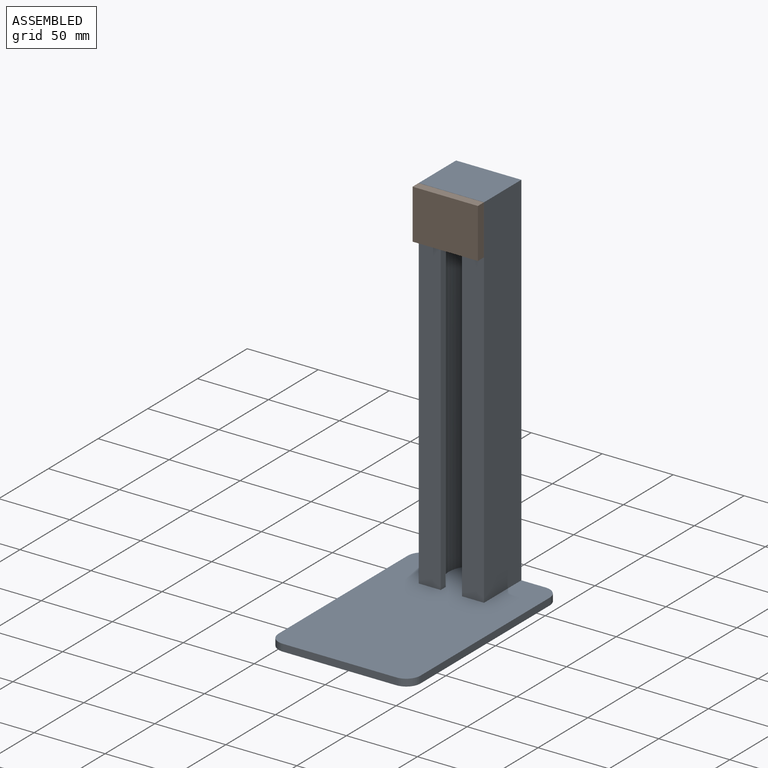
[diagram: assembled view]
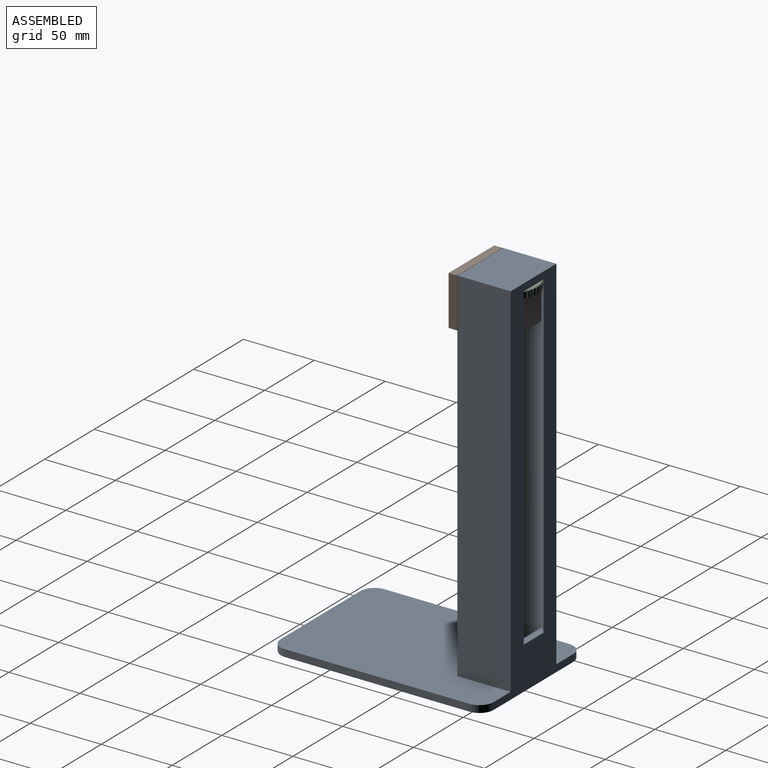
[diagram: assembled view, second angle]
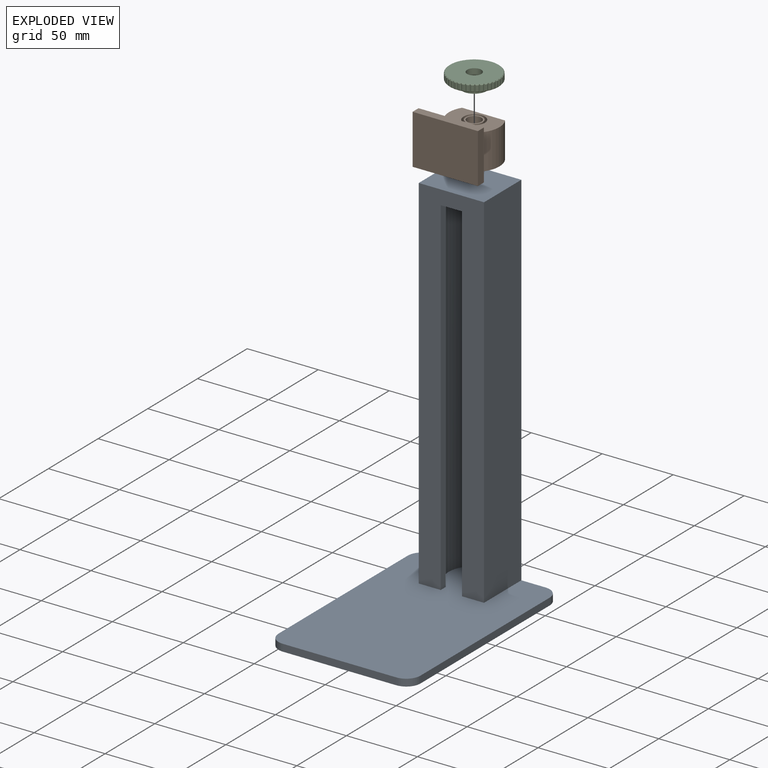
[diagram: exploded view]
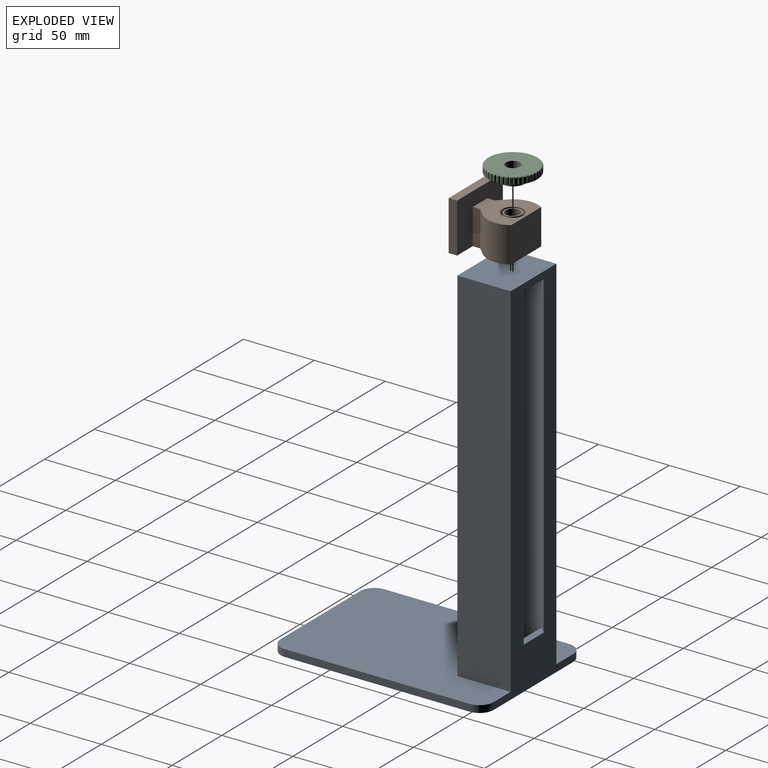
[diagram: exploded view, second angle]
ASSEMBLY  parts=3 mates=3
PART A: 28 faces, bbox 100x150x260 mm
  f0: plane 245x5mm, normal (-1,0,0), area 1225mm2, adj f5,f8,f16,f27
  f1: plane 245x5mm, normal (1,0,0), area 1225mm2, adj f8,f9,f16,f27
  f2: plane 36x33.96mm, normal (0,0,-1), area 911.8mm2, adj f3,f4,f5,f9,f10,f11,f21,f22
  f3: plane 260x80mm, normal (0,1,0), area 7641.5mm2, adj f2,f6,f7,f15,f16,f17,f20,f21
  f4: plane 250x30.58mm, normal (0,-1,0), area 977.4mm2, adj f2,f10,f11,f16,f21,f22,f23
  f5: plane 250x5.33mm, normal (-0.71,0.7,0), area 1875mm2, adj f0,f2,f11,f16,f26
  f6: plane 255x37.5mm, normal (1,0,0), area 9562.5mm2, adj f3,f8,f16,f24
  f7: plane 255x37.5mm, normal (-1,0,0), area 9562.5mm2, adj f3,f8,f16,f24
  f8: plane 255x46mm, normal (0,-1,0), area 8055mm2, adj f0,f1,f6,f7,f16,f24,f27
  f9: plane 250x5.33mm, normal (0.71,0.7,0), area 1875mm2, adj f1,f2,f10,f16,f26
  f10: cylinder r=18mm len=250mm, axis (0,0,-1), area 6017.4mm2, adj f2,f4,f9,f16
  f11: cylinder r=18mm len=250mm, axis (0,0,-1), area 6017.4mm2, adj f2,f4,f5,f16
  f12: plane 130x5mm, normal (-1,0,0), area 650mm2, adj f15,f16,f19,f20
  f13: plane 130x5mm, normal (1,0,0), area 650mm2, adj f15,f16,f17,f18
  f14: plane 80x5mm, normal (0,-1,0), area 400mm2, adj f15,f16,f18,f19
  f15: plane 150x100mm, normal (0,0,-1), area 14914.2mm2, adj f3,f12,f13,f14,f17,f18,f19,f20
  f16: plane 150x100mm, normal (0,0,1), area 14034.1mm2, adj f0,f1,f3,f4,f5,f6,f7,f8
  f17: cylinder r=10mm len=10mm, axis (0,0,-1), area 78.5mm2, adj f3,f13,f15,f16
  f18: cylinder r=10mm len=10mm, axis (0,0,1), area 78.5mm2, adj f13,f14,f15,f16
  f19: cylinder r=10mm len=10mm, axis (0,0,-1), area 78.5mm2, adj f12,f14,f15,f16
  f20: cylinder r=10mm len=10mm, axis (0,0,1), area 78.5mm2, adj f3,f12,f15,f16
  f21: cylinder r=17.7mm len=225mm, axis (0,0,1), area 1567mm2, adj f2,f3,f4,f23
  f22: cylinder r=17.5mm len=225mm, axis (0,0,1), area 1585.7mm2, adj f2,f3,f4,f23
  f23: plane 29.63x5mm, normal (0,0,1), area 127.2mm2, adj f3,f4,f21,f22
  f24: plane 46x37.5mm, normal (0,0,1), area 1725mm2, adj f3,f6,f7,f8
  f25: cylinder r=5mm len=250mm, axis (0,0,-1), area 7854mm2, adj f2,f16
  f26: cylinder r=20mm len=15mm, axis (0,0,1), area 76.9mm2, adj f2,f5,f9,f27
  f27: plane 15x5mm, normal (0,0,-1), area 60.3mm2, adj f0,f1,f8,f26
PART B: 21 faces, bbox 46x38.5x35 mm
  f0: plane 35.6x32.5mm, normal (0,0,1), area 729mm2, adj f2,f6,f7,f8,f9,f10,f11,f13
  f1: plane 12x12mm, normal (0,0,1), area 34.6mm2, adj f12,f19
  f2: plane 25x5.28mm, normal (-1,0,0), area 132.1mm2, adj f0,f6,f13,f14
  f3: plane 35x6mm, normal (-1,0,0), area 210mm2, adj f4,f6,f14,f20
  f4: plane 46x35mm, normal (0,-1,0), area 1610mm2, adj f3,f5,f14,f20
  f5: plane 35x6mm, normal (1,0,0), area 210mm2, adj f4,f6,f14,f20
  f6: plane 46x35mm, normal (0,1,0), area 1245mm2, adj f0,f2,f3,f5,f7,f14,f20
  f7: plane 25x5.28mm, normal (1,0,0), area 132.1mm2, adj f0,f6,f8,f14
  f8: plane 25x5.38mm, normal (0.71,-0.7,0), area 189.6mm2, adj f0,f7,f9,f14
  f9: cylinder r=17.8mm len=25mm, axis (0,0,-1), area 592.3mm2, adj f0,f8,f10,f14
  f10: plane 30.35x25mm, normal (0,1,0), area 758.9mm2, adj f0,f9,f11,f14
  f11: cylinder r=17.8mm len=25mm, axis (0,0,-1), area 592.3mm2, adj f0,f10,f13,f14
  f12: cylinder r=5mm len=25mm, axis (0,0,-1), area 785.4mm2, adj f1,f14
  f13: plane 25x5.38mm, normal (-0.71,-0.7,0), area 189.6mm2, adj f0,f2,f11,f14
  f14: plane 46x38.5mm, normal (0,0,-1), area 1103.2mm2, adj f2,f3,f4,f5,f6,f7,f8,f9
  f15: cylinder r=7.5mm len=15mm, axis (0,0,1), area 164.9mm2, adj f0,f16
  f16: plane 17x17mm, normal (0,0,-1), area 50.3mm2, adj f15,f17
  f17: cylinder r=8.5mm len=17mm, axis (0,0,1), area 80.1mm2, adj f16,f18
  f18: plane 17x17mm, normal (0,0,1), area 113.9mm2, adj f17,f19
  f19: cylinder r=6mm len=12mm, axis (0,0,1), area 188.5mm2, adj f1,f18
  f20: plane 46x6mm, normal (0,0,1), area 276mm2, adj f3,f4,f5,f6
PART C: 209 faces, bbox 35x35x10 mm
  f0: cylinder r=17.5mm len=4mm, axis (0,0,1), area 6mm2, adj f40,f80,f205,f208
  f1: cylinder r=17.5mm len=4mm, axis (0,0,1), area 6mm2, adj f41,f81,f203,f206
  f2: cylinder r=17.5mm len=4mm, axis (0,0,1), area 6mm2, adj f42,f82,f201,f204
  f3: cylinder r=17.5mm len=4mm, axis (0,0,1), area 6mm2, adj f43,f83,f199,f202
  f4: cylinder r=17.5mm len=4mm, axis (0,0,1), area 6mm2, adj f44,f84,f197,f200
  f5: cylinder r=17.5mm len=4mm, axis (0,0,1), area 6mm2, adj f45,f85,f195,f198
  f6: cylinder r=17.5mm len=4mm, axis (0,0,1), area 6mm2, adj f46,f86,f193,f196
  f7: cylinder r=17.5mm len=4mm, axis (0,0,1), area 6mm2, adj f47,f87,f191,f194
  f8: cylinder r=17.5mm len=4mm, axis (0,0,1), area 6mm2, adj f48,f88,f189,f192
  f9: cylinder r=17.5mm len=4mm, axis (0,0,1), area 6mm2, adj f49,f89,f187,f190
  f10: cylinder r=17.5mm len=4mm, axis (0,0,1), area 6mm2, adj f50,f90,f185,f188
  f11: cylinder r=17.5mm len=4mm, axis (0,0,1), area 6mm2, adj f51,f91,f183,f186
  f12: cylinder r=17.5mm len=4mm, axis (0,0,1), area 6mm2, adj f52,f92,f181,f184
  f13: cylinder r=17.5mm len=4mm, axis (0,0,1), area 6mm2, adj f53,f93,f179,f182
  f14: cylinder r=17.5mm len=4mm, axis (0,0,1), area 6mm2, adj f54,f94,f177,f180
  f15: cylinder r=17.5mm len=4mm, axis (0,0,1), area 6mm2, adj f55,f95,f175,f178
  f16: cylinder r=17.5mm len=4mm, axis (0,0,1), area 6mm2, adj f56,f96,f173,f176
  f17: cylinder r=17.5mm len=4mm, axis (0,0,1), area 6mm2, adj f57,f97,f171,f174
  f18: cylinder r=17.5mm len=4mm, axis (0,0,1), area 6mm2, adj f58,f98,f169,f172
  f19: cylinder r=17.5mm len=4mm, axis (0,0,1), area 6mm2, adj f59,f99,f167,f170
  f20: cylinder r=17.5mm len=4mm, axis (0,0,1), area 6mm2, adj f60,f100,f165,f168
  f21: cylinder r=17.5mm len=4mm, axis (0,0,1), area 6mm2, adj f61,f101,f163,f166
  f22: cylinder r=17.5mm len=4mm, axis (0,0,1), area 6mm2, adj f62,f102,f161,f164
  f23: cylinder r=17.5mm len=4mm, axis (0,0,1), area 6mm2, adj f63,f103,f159,f162
  f24: cylinder r=17.5mm len=4mm, axis (0,0,1), area 6mm2, adj f64,f104,f157,f160
  f25: cylinder r=17.5mm len=4mm, axis (0,0,1), area 6mm2, adj f65,f105,f155,f158
  f26: cylinder r=17.5mm len=4mm, axis (0,0,1), area 6mm2, adj f66,f106,f153,f156
  f27: cylinder r=17.5mm len=4mm, axis (0,0,1), area 6mm2, adj f67,f107,f151,f154
  f28: cylinder r=17.5mm len=4mm, axis (0,0,1), area 6mm2, adj f68,f108,f149,f152
  f29: cylinder r=17.5mm len=4mm, axis (0,0,1), area 6mm2, adj f69,f109,f147,f150
  f30: cylinder r=17.5mm len=4mm, axis (0,0,1), area 6mm2, adj f70,f110,f145,f148
  f31: cylinder r=17.5mm len=4mm, axis (0,0,1), area 6mm2, adj f78,f118,f129,f146
  f32: cylinder r=17.5mm len=4mm, axis (0,0,1), area 6mm2, adj f39,f79,f144,f207
  f33: cylinder r=17.5mm len=4mm, axis (0,0,1), area 6mm2, adj f71,f111,f142,f143
  f34: cylinder r=17.5mm len=4mm, axis (0,0,1), area 6mm2, adj f72,f112,f140,f141
  f35: cylinder r=17.5mm len=4mm, axis (0,0,1), area 6mm2, adj f73,f113,f138,f139
  f36: cylinder r=17.5mm len=4mm, axis (0,0,1), area 6mm2, adj f74,f114,f136,f137
  f37: cylinder r=17.5mm len=4mm, axis (0,0,1), area 6mm2, adj f75,f115,f134,f135
  f38: cylinder r=17.5mm len=4mm, axis (0,0,1), area 6mm2, adj f76,f116,f132,f133
  f39: cone r=17.5mm half-angle=45deg, axis (0,0,1), area 1.5mm2, adj f32,f121,f144,f207
  f40: cone r=17.5mm half-angle=45deg, axis (0,0,1), area 1.5mm2, adj f0,f121,f205,f208
  f41: cone r=17.5mm half-angle=45deg, axis (0,0,1), area 1.5mm2, adj f1,f121,f203,f206
  f42: cone r=17.5mm half-angle=45deg, axis (0,0,1), area 1.5mm2, adj f2,f121,f201,f204
  f43: cone r=17.5mm half-angle=45deg, axis (0,0,1), area 1.5mm2, adj f3,f121,f199,f202
  f44: cone r=17.5mm half-angle=45deg, axis (0,0,1), area 1.5mm2, adj f4,f121,f197,f200
  f45: cone r=17.5mm half-angle=45deg, axis (0,0,1), area 1.5mm2, adj f5,f121,f195,f198
  f46: cone r=17.5mm half-angle=45deg, axis (0,0,1), area 1.5mm2, adj f6,f121,f193,f196
  f47: cone r=17.5mm half-angle=45deg, axis (0,0,1), area 1.5mm2, adj f7,f121,f191,f194
  f48: cone r=17.5mm half-angle=45deg, axis (0,0,1), area 1.5mm2, adj f8,f121,f189,f192
  f49: cone r=17.5mm half-angle=45deg, axis (0,0,1), area 1.5mm2, adj f9,f121,f187,f190
  f50: cone r=17.5mm half-angle=45deg, axis (0,0,1), area 1.5mm2, adj f10,f121,f185,f188
  f51: cone r=17.5mm half-angle=45deg, axis (0,0,1), area 1.5mm2, adj f11,f121,f183,f186
  f52: cone r=17.5mm half-angle=45deg, axis (0,0,1), area 1.5mm2, adj f12,f121,f181,f184
  f53: cone r=17.5mm half-angle=45deg, axis (0,0,1), area 1.5mm2, adj f13,f121,f179,f182
  f54: cone r=17.5mm half-angle=45deg, axis (0,0,1), area 1.5mm2, adj f14,f121,f177,f180
  f55: cone r=17.5mm half-angle=45deg, axis (0,0,1), area 1.5mm2, adj f15,f121,f175,f178
  f56: cone r=17.5mm half-angle=45deg, axis (0,0,1), area 1.5mm2, adj f16,f121,f173,f176
  f57: cone r=17.5mm half-angle=45deg, axis (0,0,1), area 1.5mm2, adj f17,f121,f171,f174
  f58: cone r=17.5mm half-angle=45deg, axis (0,0,1), area 1.5mm2, adj f18,f121,f169,f172
  f59: cone r=17.5mm half-angle=45deg, axis (0,0,1), area 1.5mm2, adj f19,f121,f167,f170
  f60: cone r=17.5mm half-angle=45deg, axis (0,0,1), area 1.5mm2, adj f20,f121,f165,f168
  f61: cone r=17.5mm half-angle=45deg, axis (0,0,1), area 1.5mm2, adj f21,f121,f163,f166
  f62: cone r=17.5mm half-angle=45deg, axis (0,0,1), area 1.5mm2, adj f22,f121,f161,f164
  f63: cone r=17.5mm half-angle=45deg, axis (0,0,1), area 1.5mm2, adj f23,f121,f159,f162
  f64: cone r=17.5mm half-angle=45deg, axis (0,0,1), area 1.5mm2, adj f24,f121,f157,f160
  f65: cone r=17.5mm half-angle=45deg, axis (0,0,1), area 1.5mm2, adj f25,f121,f155,f158
  f66: cone r=17.5mm half-angle=45deg, axis (0,0,1), area 1.5mm2, adj f26,f121,f153,f156
  f67: cone r=17.5mm half-angle=45deg, axis (0,0,1), area 1.5mm2, adj f27,f121,f151,f154
  f68: cone r=17.5mm half-angle=45deg, axis (0,0,1), area 1.5mm2, adj f28,f121,f149,f152
  f69: cone r=17.5mm half-angle=45deg, axis (0,0,1), area 1.5mm2, adj f29,f121,f147,f150
  f70: cone r=17.5mm half-angle=45deg, axis (0,0,1), area 1.5mm2, adj f30,f121,f145,f148
  f71: cone r=17.5mm half-angle=45deg, axis (0,0,1), area 1.5mm2, adj f33,f121,f142,f143
  f72: cone r=17.5mm half-angle=45deg, axis (0,0,1), area 1.5mm2, adj f34,f121,f140,f141
  f73: cone r=17.5mm half-angle=45deg, axis (0,0,1), area 1.5mm2, adj f35,f121,f138,f139
  f74: cone r=17.5mm half-angle=45deg, axis (0,0,1), area 1.5mm2, adj f36,f121,f136,f137
  f75: cone r=17.5mm half-angle=45deg, axis (0,0,1), area 1.5mm2, adj f37,f121,f134,f135
  f76: cone r=17.5mm half-angle=45deg, axis (0,0,1), area 1.5mm2, adj f38,f121,f132,f133
  f77: cone r=17.5mm half-angle=45deg, axis (0,0,1), area 1.5mm2, adj f120,f121,f130,f131
  f78: cone r=17.5mm half-angle=45deg, axis (0,0,1), area 1.5mm2, adj f31,f121,f129,f146
  f79: cone r=17mm half-angle=45deg, axis (0,0,-1), area 1.5mm2, adj f32,f119,f144,f207
  f80: cone r=17mm half-angle=45deg, axis (0,0,-1), area 1.5mm2, adj f0,f119,f205,f208
  f81: cone r=17mm half-angle=45deg, axis (0,0,-1), area 1.5mm2, adj f1,f119,f203,f206
  f82: cone r=17mm half-angle=45deg, axis (0,0,-1), area 1.5mm2, adj f2,f119,f201,f204
  f83: cone r=17mm half-angle=45deg, axis (0,0,-1), area 1.5mm2, adj f3,f119,f199,f202
  f84: cone r=17mm half-angle=45deg, axis (0,0,-1), area 1.5mm2, adj f4,f119,f197,f200
  f85: cone r=17mm half-angle=45deg, axis (0,0,-1), area 1.5mm2, adj f5,f119,f195,f198
  f86: cone r=17mm half-angle=45deg, axis (0,0,-1), area 1.5mm2, adj f6,f119,f193,f196
  f87: cone r=17mm half-angle=45deg, axis (0,0,-1), area 1.5mm2, adj f7,f119,f191,f194
  f88: cone r=17mm half-angle=45deg, axis (0,0,-1), area 1.5mm2, adj f8,f119,f189,f192
  f89: cone r=17mm half-angle=45deg, axis (0,0,-1), area 1.5mm2, adj f9,f119,f187,f190
  f90: cone r=17mm half-angle=45deg, axis (0,0,-1), area 1.5mm2, adj f10,f119,f185,f188
  f91: cone r=17mm half-angle=45deg, axis (0,0,-1), area 1.5mm2, adj f11,f119,f183,f186
  f92: cone r=17mm half-angle=45deg, axis (0,0,-1), area 1.5mm2, adj f12,f119,f181,f184
  f93: cone r=17mm half-angle=45deg, axis (0,0,-1), area 1.5mm2, adj f13,f119,f179,f182
  f94: cone r=17mm half-angle=45deg, axis (0,0,-1), area 1.5mm2, adj f14,f119,f177,f180
  f95: cone r=17mm half-angle=45deg, axis (0,0,-1), area 1.5mm2, adj f15,f119,f175,f178
  f96: cone r=17mm half-angle=45deg, axis (0,0,-1), area 1.5mm2, adj f16,f119,f173,f176
  f97: cone r=17mm half-angle=45deg, axis (0,0,-1), area 1.5mm2, adj f17,f119,f171,f174
  f98: cone r=17mm half-angle=45deg, axis (0,0,-1), area 1.5mm2, adj f18,f119,f169,f172
  f99: cone r=17mm half-angle=45deg, axis (0,0,-1), area 1.5mm2, adj f19,f119,f167,f170
  f100: cone r=17mm half-angle=45deg, axis (0,0,-1), area 1.5mm2, adj f20,f119,f165,f168
  f101: cone r=17mm half-angle=45deg, axis (0,0,-1), area 1.5mm2, adj f21,f119,f163,f166
  f102: cone r=17mm half-angle=45deg, axis (0,0,-1), area 1.5mm2, adj f22,f119,f161,f164
  f103: cone r=17mm half-angle=45deg, axis (0,0,-1), area 1.5mm2, adj f23,f119,f159,f162
  f104: cone r=17mm half-angle=45deg, axis (0,0,-1), area 1.5mm2, adj f24,f119,f157,f160
  f105: cone r=17mm half-angle=45deg, axis (0,0,-1), area 1.5mm2, adj f25,f119,f155,f158
  f106: cone r=17mm half-angle=45deg, axis (0,0,-1), area 1.5mm2, adj f26,f119,f153,f156
  f107: cone r=17mm half-angle=45deg, axis (0,0,-1), area 1.5mm2, adj f27,f119,f151,f154
  f108: cone r=17mm half-angle=45deg, axis (0,0,-1), area 1.5mm2, adj f28,f119,f149,f152
  f109: cone r=17mm half-angle=45deg, axis (0,0,-1), area 1.5mm2, adj f29,f119,f147,f150
  f110: cone r=17mm half-angle=45deg, axis (0,0,-1), area 1.5mm2, adj f30,f119,f145,f148
  f111: cone r=17mm half-angle=45deg, axis (0,0,-1), area 1.5mm2, adj f33,f119,f142,f143
  f112: cone r=17mm half-angle=45deg, axis (0,0,-1), area 1.5mm2, adj f34,f119,f140,f141
  f113: cone r=17mm half-angle=45deg, axis (0,0,-1), area 1.5mm2, adj f35,f119,f138,f139
  f114: cone r=17mm half-angle=45deg, axis (0,0,-1), area 1.5mm2, adj f36,f119,f136,f137
  f115: cone r=17mm half-angle=45deg, axis (0,0,-1), area 1.5mm2, adj f37,f119,f134,f135
  f116: cone r=17mm half-angle=45deg, axis (0,0,-1), area 1.5mm2, adj f38,f119,f132,f133
  f117: cone r=17mm half-angle=45deg, axis (0,0,-1), area 1.5mm2, adj f119,f120,f130,f131
  f118: cone r=17mm half-angle=45deg, axis (0,0,-1), area 1.5mm2, adj f31,f119,f129,f146
  f119: plane 34x34mm, normal (0,0,1), area 829.4mm2, adj f79,f80,f81,f82,f83,f84,f85,f86
  f120: cylinder r=17.5mm len=4mm, axis (0,0,1), area 6mm2, adj f77,f117,f130,f131
  f121: plane 34x34mm, normal (0,0,-1), area 731.2mm2, adj f39,f40,f41,f42,f43,f44,f45,f46
  f122: cylinder r=7.5mm len=15mm, axis (0,0,1), area 164.9mm2, adj f121,f123
  f123: plane 17x17mm, normal (0,0,1), area 50.3mm2, adj f122,f124
  f124: cylinder r=8.5mm len=17mm, axis (0,0,1), area 80.1mm2, adj f123,f125
  f125: plane 17x17mm, normal (0,0,-1), area 113.9mm2, adj f124,f126
  f126: cylinder r=6mm len=12mm, axis (0,0,1), area 188.5mm2, adj f125,f127
  f127: plane 12x12mm, normal (0,0,-1), area 34.6mm2, adj f126,f128
  f128: cylinder r=5mm len=10mm, axis (0,0,1), area 157.1mm2, adj f119,f127
  f129: plane 5.01x0.64mm, normal (0.62,0.79,0), area 3.6mm2, adj f31,f78,f118,f130
  f130: plane 5.01x0.64mm, normal (-0.62,0.79,0), area 3.6mm2, adj f77,f117,f120,f129
  f131: plane 5.01x0.59mm, normal (0.73,0.68,0), area 3.6mm2, adj f77,f117,f120,f132
  f132: plane 5.01x0.71mm, normal (-0.49,0.87,0), area 3.6mm2, adj f38,f76,f116,f131
  f133: plane 5.01x0.67mm, normal (0.83,0.56,0), area 3.6mm2, adj f38,f76,f116,f134
  f134: plane 5.01x0.76mm, normal (-0.34,0.94,0), area 3.6mm2, adj f37,f75,f115,f133
  f135: plane 5.01x0.73mm, normal (0.91,0.42,0), area 3.6mm2, adj f37,f75,f115,f136
  f136: plane 5.01x0.79mm, normal (-0.19,0.98,0), area 3.6mm2, adj f36,f74,f114,f135
  f137: plane 5.01x0.77mm, normal (0.96,0.27,0), area 3.6mm2, adj f36,f74,f114,f138
  f138: plane 5.01x0.8mm, normal (-0.04,1,0), area 3.6mm2, adj f35,f73,f113,f137
  f139: plane 5.01x0.8mm, normal (0.99,0.12,0), area 3.6mm2, adj f35,f73,f113,f140
  f140: plane 5.01x0.8mm, normal (0.12,0.99,0), area 3.6mm2, adj f34,f72,f112,f139
  f141: plane 5.01x0.8mm, normal (1,-0.04,0), area 3.6mm2, adj f34,f72,f112,f142
  f142: plane 5.01x0.77mm, normal (0.27,0.96,0), area 3.6mm2, adj f33,f71,f111,f141
  f143: plane 5.01x0.79mm, normal (0.98,-0.19,0), area 3.6mm2, adj f33,f71,f111,f144
  f144: plane 5.01x0.73mm, normal (0.42,0.91,0), area 3.6mm2, adj f32,f39,f79,f143
  f145: plane 5.01x0.71mm, normal (0.49,0.87,0), area 3.6mm2, adj f30,f70,f110,f146
  f146: plane 5.01x0.59mm, normal (-0.73,0.68,0), area 3.6mm2, adj f31,f78,f118,f145
  f147: plane 5.01x0.76mm, normal (0.34,0.94,0), area 3.6mm2, adj f29,f69,f109,f148
  f148: plane 5.01x0.67mm, normal (-0.83,0.56,0), area 3.6mm2, adj f30,f70,f110,f147
  f149: plane 5.01x0.79mm, normal (0.19,0.98,0), area 3.6mm2, adj f28,f68,f108,f150
  f150: plane 5.01x0.73mm, normal (-0.91,0.42,0), area 3.6mm2, adj f29,f69,f109,f149
  f151: plane 5.01x0.8mm, normal (0.04,1,0), area 3.6mm2, adj f27,f67,f107,f152
  f152: plane 5.01x0.77mm, normal (-0.96,0.27,0), area 3.6mm2, adj f28,f68,f108,f151
  f153: plane 5.01x0.8mm, normal (-0.12,0.99,0), area 3.6mm2, adj f26,f66,f106,f154
  f154: plane 5.01x0.8mm, normal (-0.99,0.12,0), area 3.6mm2, adj f27,f67,f107,f153
  f155: plane 5.01x0.77mm, normal (-0.27,0.96,0), area 3.6mm2, adj f25,f65,f105,f156
  f156: plane 5.01x0.8mm, normal (-1,-0.04,0), area 3.6mm2, adj f26,f66,f106,f155
  f157: plane 5.01x0.73mm, normal (-0.42,0.91,0), area 3.6mm2, adj f24,f64,f104,f158
  f158: plane 5.01x0.79mm, normal (-0.98,-0.19,0), area 3.6mm2, adj f25,f65,f105,f157
  f159: plane 5.01x0.67mm, normal (-0.56,0.83,0), area 3.6mm2, adj f23,f63,f103,f160
  f160: plane 5.01x0.76mm, normal (-0.94,-0.34,0), area 3.6mm2, adj f24,f64,f104,f159
  f161: plane 5.01x0.59mm, normal (-0.68,0.73,0), area 3.6mm2, adj f22,f62,f102,f162
  f162: plane 5.01x0.71mm, normal (-0.87,-0.49,0), area 3.6mm2, adj f23,f63,f103,f161
  f163: plane 5.01x0.64mm, normal (-0.79,0.62,0), area 3.6mm2, adj f21,f61,f101,f164
  f164: plane 5.01x0.64mm, normal (-0.79,-0.62,0), area 3.6mm2, adj f22,f62,f102,f163
  f165: plane 5.01x0.71mm, normal (-0.87,0.49,0), area 3.6mm2, adj f20,f60,f100,f166
  f166: plane 5.01x0.59mm, normal (-0.68,-0.73,0), area 3.6mm2, adj f21,f61,f101,f165
  f167: plane 5.01x0.76mm, normal (-0.94,0.34,0), area 3.6mm2, adj f19,f59,f99,f168
  f168: plane 5.01x0.67mm, normal (-0.56,-0.83,0), area 3.6mm2, adj f20,f60,f100,f167
  f169: plane 5.01x0.79mm, normal (-0.98,0.19,0), area 3.6mm2, adj f18,f58,f98,f170
  f170: plane 5.01x0.73mm, normal (-0.42,-0.91,0), area 3.6mm2, adj f19,f59,f99,f169
  f171: plane 5.01x0.8mm, normal (-1,0.04,0), area 3.6mm2, adj f17,f57,f97,f172
  f172: plane 5.01x0.77mm, normal (-0.27,-0.96,0), area 3.6mm2, adj f18,f58,f98,f171
  f173: plane 5.01x0.8mm, normal (-0.99,-0.12,0), area 3.6mm2, adj f16,f56,f96,f174
  f174: plane 5.01x0.8mm, normal (-0.12,-0.99,0), area 3.6mm2, adj f17,f57,f97,f173
  f175: plane 5.01x0.77mm, normal (-0.96,-0.27,0), area 3.6mm2, adj f15,f55,f95,f176
  f176: plane 5.01x0.8mm, normal (0.04,-1,0), area 3.6mm2, adj f16,f56,f96,f175
  f177: plane 5.01x0.73mm, normal (-0.91,-0.42,0), area 3.6mm2, adj f14,f54,f94,f178
  f178: plane 5.01x0.79mm, normal (0.19,-0.98,0), area 3.6mm2, adj f15,f55,f95,f177
  f179: plane 5.01x0.67mm, normal (-0.83,-0.56,0), area 3.6mm2, adj f13,f53,f93,f180
  f180: plane 5.01x0.76mm, normal (0.34,-0.94,0), area 3.6mm2, adj f14,f54,f94,f179
  f181: plane 5.01x0.59mm, normal (-0.73,-0.68,0), area 3.6mm2, adj f12,f52,f92,f182
  f182: plane 5.01x0.71mm, normal (0.49,-0.87,0), area 3.6mm2, adj f13,f53,f93,f181
  f183: plane 5.01x0.64mm, normal (-0.62,-0.79,0), area 3.6mm2, adj f11,f51,f91,f184
  f184: plane 5.01x0.64mm, normal (0.62,-0.79,0), area 3.6mm2, adj f12,f52,f92,f183
  f185: plane 5.01x0.71mm, normal (-0.49,-0.87,0), area 3.6mm2, adj f10,f50,f90,f186
  f186: plane 5.01x0.59mm, normal (0.73,-0.68,0), area 3.6mm2, adj f11,f51,f91,f185
  f187: plane 5.01x0.76mm, normal (-0.34,-0.94,0), area 3.6mm2, adj f9,f49,f89,f188
  f188: plane 5.01x0.67mm, normal (0.83,-0.56,0), area 3.6mm2, adj f10,f50,f90,f187
  f189: plane 5.01x0.79mm, normal (-0.19,-0.98,0), area 3.6mm2, adj f8,f48,f88,f190
  f190: plane 5.01x0.73mm, normal (0.91,-0.42,0), area 3.6mm2, adj f9,f49,f89,f189
  f191: plane 5.01x0.8mm, normal (-0.04,-1,0), area 3.6mm2, adj f7,f47,f87,f192
  f192: plane 5.01x0.77mm, normal (0.96,-0.27,0), area 3.6mm2, adj f8,f48,f88,f191
  f193: plane 5.01x0.8mm, normal (0.12,-0.99,0), area 3.6mm2, adj f6,f46,f86,f194
  f194: plane 5.01x0.8mm, normal (0.99,-0.12,0), area 3.6mm2, adj f7,f47,f87,f193
  f195: plane 5.01x0.77mm, normal (0.27,-0.96,0), area 3.6mm2, adj f5,f45,f85,f196
  f196: plane 5.01x0.8mm, normal (1,0.04,0), area 3.6mm2, adj f6,f46,f86,f195
  f197: plane 5.01x0.73mm, normal (0.42,-0.91,0), area 3.6mm2, adj f4,f44,f84,f198
  f198: plane 5.01x0.79mm, normal (0.98,0.19,0), area 3.6mm2, adj f5,f45,f85,f197
  f199: plane 5.01x0.67mm, normal (0.56,-0.83,0), area 3.6mm2, adj f3,f43,f83,f200
  f200: plane 5.01x0.76mm, normal (0.94,0.34,0), area 3.6mm2, adj f4,f44,f84,f199
  f201: plane 5.01x0.59mm, normal (0.68,-0.73,0), area 3.6mm2, adj f2,f42,f82,f202
  f202: plane 5.01x0.71mm, normal (0.87,0.49,0), area 3.6mm2, adj f3,f43,f83,f201
  f203: plane 5.01x0.64mm, normal (0.79,-0.62,0), area 3.6mm2, adj f1,f41,f81,f204
  f204: plane 5.01x0.64mm, normal (0.79,0.62,0), area 3.6mm2, adj f2,f42,f82,f203
  f205: plane 5.01x0.71mm, normal (0.87,-0.49,0), area 3.6mm2, adj f0,f40,f80,f206
  f206: plane 5.01x0.59mm, normal (0.68,0.73,0), area 3.6mm2, adj f1,f41,f81,f205
  f207: plane 5.01x0.76mm, normal (0.94,-0.34,0), area 3.6mm2, adj f32,f39,f79,f208
  f208: plane 5.01x0.67mm, normal (0.56,0.83,0), area 3.6mm2, adj f0,f40,f80,f207
PLACE A at identity fixed
PLACE B t=(0,0,220)mm
PLACE C rot(axis=(0.02,0.02,-1),0deg) t=(0,0,220)mm
MATE revolute C.f0 <-> B.f12  axis (0,0,1) through (0,0,245)mm
MATE slider A.f10 <-> B.f9  axis (0,0,1) through (0,0,0)mm
MATE cylindrical C.f0 <-> A.f25  axis (0,0,1) through (0,0,250)mm
